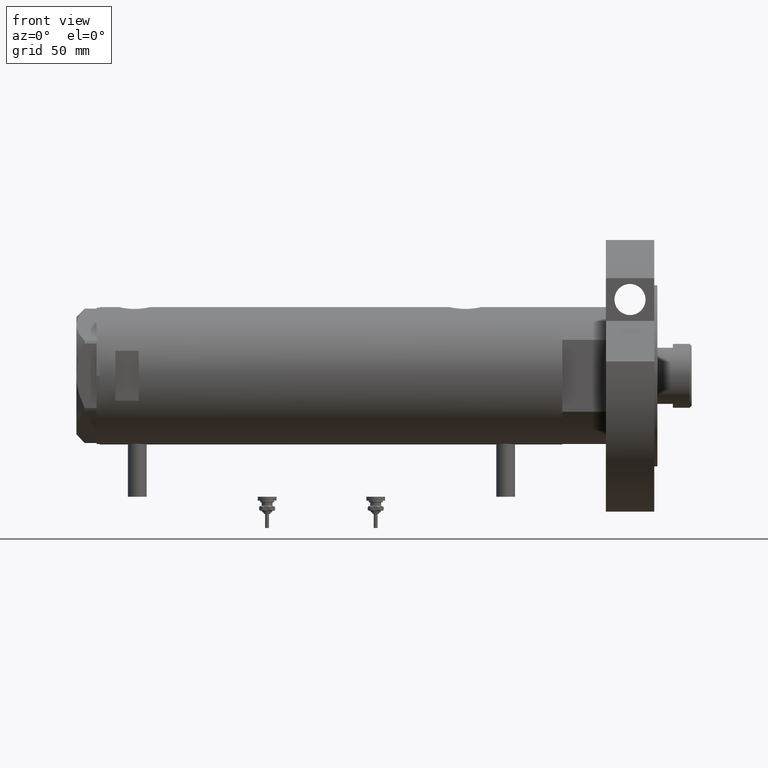
[diagram: clean part render]
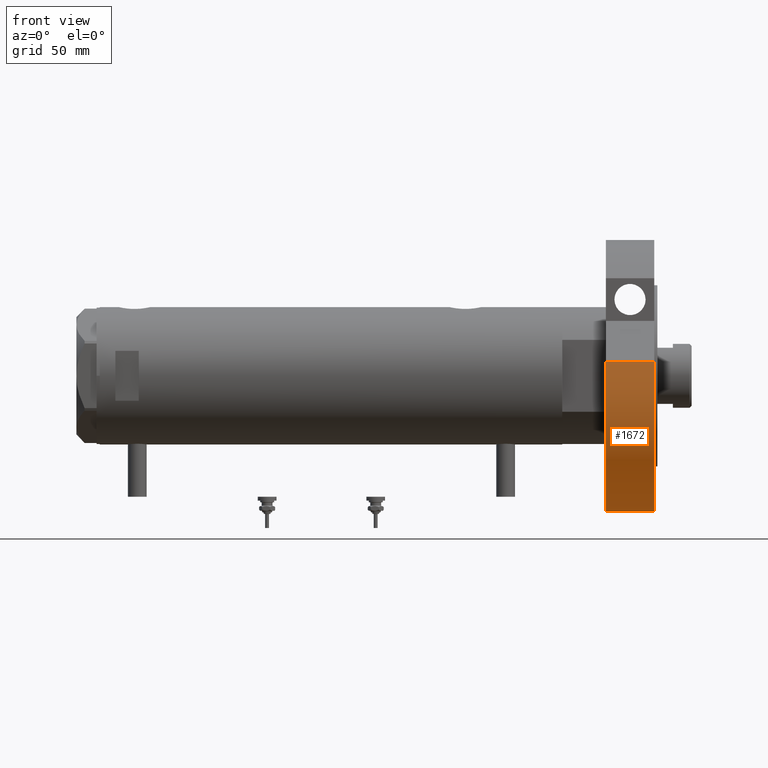
[diagram: same view with one face highlighted and labeled with its STEP entity id]
A machine part, front view. The second image highlights one B-rep face of the part: STEP entity #1672.
In plain terms, the highlighted cylindrical surface (partial cylindrical patch) has radius 87 mm, axis along (-1, -0, 0).
Its self-contained STEP definition (entity closure, byte-faithful):
#88 = CARTESIAN_POINT ( 'NONE',  ( 9.196694222441541555, 86.51254715576759224, 31.00000000000000000 ) ) ;
#99 = VECTOR ( 'NONE', #399, 1000.000000000000000 ) ;
#219 = CARTESIAN_POINT ( 'NONE',  ( -87.00000000000000000, 0.000000000000000000, 0.000000000000000000 ) ) ;
#362 = CARTESIAN_POINT ( 'NONE',  ( 9.196694222441541555, 86.51254715576759224, 0.000000000000000000 ) ) ;
#399 = DIRECTION ( 'NONE',  ( -0.000000000000000000, -0.000000000000000000, -1.000000000000000000 ) ) ;
#507 = DIRECTION ( 'NONE',  ( 0.000000000000000000, 0.000000000000000000, 1.000000000000000000 ) ) ;
#627 = CARTESIAN_POINT ( 'NONE',  ( 9.196694222441541555, 86.51254715576759224, 0.000000000000000000 ) ) ;
#1231 = VERTEX_POINT ( 'NONE', #1295 ) ;
#1251 = VERTEX_POINT ( 'NONE', #219 ) ;
#1269 = ORIENTED_EDGE ( 'NONE', *, *, #3246, .F. ) ;
#1295 = CARTESIAN_POINT ( 'NONE',  ( -87.00000000000000000, 0.000000000000000000, 31.00000000000000000 ) ) ;
#1440 = AXIS2_PLACEMENT_3D ( 'NONE', #4439, #5691, #6253 ) ;
#1514 = FACE_OUTER_BOUND ( 'NONE', #1711, .T. ) ;
#1571 = AXIS2_PLACEMENT_3D ( 'NONE', #3138, #2646, #2536 ) ;
#1672 = ADVANCED_FACE ( 'NONE', ( #1514 ), #3782, .T. ) ;
#1711 = EDGE_LOOP ( 'NONE', ( #1269, #5130, #4321, #3338 ) ) ;
#1844 = EDGE_CURVE ( 'NONE', #5127, #1251, #6046, .T. ) ;
#2536 = DIRECTION ( 'NONE',  ( -1.000000000000000000, 0.000000000000000000, 0.000000000000000000 ) ) ;
#2544 = AXIS2_PLACEMENT_3D ( 'NONE', #6298, #507, #3332 ) ;
#2592 = LINE ( 'NONE', #4911, #99 ) ;
#2646 = DIRECTION ( 'NONE',  ( -0.000000000000000000, -0.000000000000000000, -1.000000000000000000 ) ) ;
#3138 = CARTESIAN_POINT ( 'NONE',  ( 0.000000000000000000, 0.000000000000000000, 31.00000000000000000 ) ) ;
#3246 = EDGE_CURVE ( 'NONE', #1231, #1251, #2592, .T. ) ;
#3326 = EDGE_CURVE ( 'NONE', #6612, #1231, #7289, .T. ) ;
#3332 = DIRECTION ( 'NONE',  ( 1.000000000000000000, 0.000000000000000000, 0.000000000000000000 ) ) ;
#3338 = ORIENTED_EDGE ( 'NONE', *, *, #1844, .T. ) ;
#3782 = CYLINDRICAL_SURFACE ( 'NONE', #1571, 87.00000000000000000 ) ;
#4181 = LINE ( 'NONE', #627, #5862 ) ;
#4321 = ORIENTED_EDGE ( 'NONE', *, *, #6586, .F. ) ;
#4439 = CARTESIAN_POINT ( 'NONE',  ( 0.000000000000000000, 0.000000000000000000, 0.000000000000000000 ) ) ;
#4911 = CARTESIAN_POINT ( 'NONE',  ( -87.00000000000000000, 0.000000000000000000, 31.00000000000000000 ) ) ;
#5127 = VERTEX_POINT ( 'NONE', #362 ) ;
#5130 = ORIENTED_EDGE ( 'NONE', *, *, #3326, .F. ) ;
#5691 = DIRECTION ( 'NONE',  ( 0.000000000000000000, 0.000000000000000000, 1.000000000000000000 ) ) ;
#5850 = DIRECTION ( 'NONE',  ( -0.000000000000000000, -0.000000000000000000, 1.000000000000000000 ) ) ;
#5862 = VECTOR ( 'NONE', #5850, 1000.000000000000000 ) ;
#6046 = CIRCLE ( 'NONE', #1440, 87.00000000000000000 ) ;
#6253 = DIRECTION ( 'NONE',  ( 1.000000000000000000, 0.000000000000000000, 0.000000000000000000 ) ) ;
#6298 = CARTESIAN_POINT ( 'NONE',  ( 0.000000000000000000, 0.000000000000000000, 31.00000000000000000 ) ) ;
#6586 = EDGE_CURVE ( 'NONE', #5127, #6612, #4181, .T. ) ;
#6612 = VERTEX_POINT ( 'NONE', #88 ) ;
#7289 = CIRCLE ( 'NONE', #2544, 87.00000000000000000 ) ;